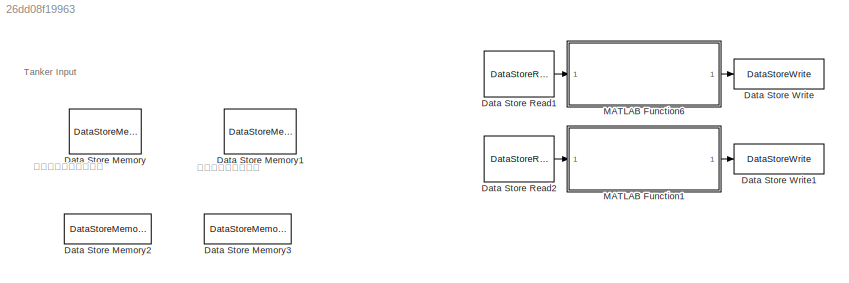
MODEL slx_26dd08f19963
KIND model
CONFIG AbsTol = auto
CONFIG EnableMultiTasking = off
CONFIG FixedStep = auto
CONFIG MaxStep = auto
CONFIG MinStep = auto
CONFIG RelTol = 1e-3
CONFIG SampleTimeConstraint = Unconstrained
CONFIG SolverName = VariableStepAuto
CONFIG StartTime = 0.0
CONFIG StopTime = 10.0
BLOCK [DataStoreMemory] Data Store Memory
  DataStoreName = TdrogueXYZ
  InitialValue = TdrogueXYZ0
  ShowAdditionalParam = off
  WriteAfterWriteMsg = warning
BLOCK [DataStoreMemory] Data Store Memory1
  DataStoreName = PodXYZ
  InitialValue = PodXYZ
  ShowAdditionalParam = off
  WriteAfterWriteMsg = warning
BLOCK [DataStoreMemory] Data Store Memory2
  DataStoreName = TdrogueVelocity
  InitialValue = [0,0,0]
  ShowAdditionalParam = off
  WriteAfterWriteMsg = warning
BLOCK [DataStoreMemory] Data Store Memory3
  DataStoreName = TdrogueDensity
  ShowAdditionalParam = off
  WriteAfterWriteMsg = warning
BLOCK [DataStoreRead] Data Store Read1
  DataStoreName = TdrogueXYZ
  IndexOptions = Index vector (dialog)
  Indices = 1
  OutputSizes = 1
BLOCK [DataStoreRead] Data Store Read2
  DataStoreName = TdrogueXYZ
  IndexOptions = Index vector (dialog)
  Indices = 1
  OutputSizes = 1
BLOCK [DataStoreWrite] Data Store Write
  DataStoreName = TdrogueVelocity
  IndexOptions = Index vector (dialog)
  Indices = 1
  OutputSizes = 1
BLOCK [DataStoreWrite] Data Store Write1
  DataStoreName = TdrogueDensity
  IndexOptions = Index vector (dialog)
  Indices = 1
  OutputSizes = 1
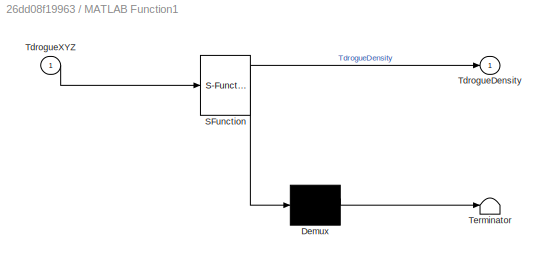
BLOCK [SubSystem] MATLAB Function1
  ErrorFcn = Stateflow.Translate.translate
  PermitHierarchicalResolution = ExplicitOnly
  SFBlockType = MATLAB Function
  TreatAsAtomicUnit = on
BLOCK [Demux] MATLAB Function1/ Demux 
  Outputs = 1
BLOCK [S-Function] MATLAB Function1/ SFunction 
  EnableBusSupport = on
  FunctionName = sf_sfun
  PortCounts = [1 2]
  SFcnIsStateOwnerBlock = off
  SFunctionDeploymentMode = off
  Tag = Stateflow S-Function 1
BLOCK [Terminator] MATLAB Function1/ Terminator 
BLOCK [Outport] MATLAB Function1/TdrogueDensity
BLOCK [Inport] MATLAB Function1/TdrogueXYZ
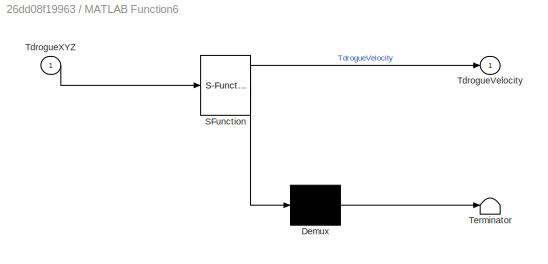
BLOCK [SubSystem] MATLAB Function6
  ErrorFcn = Stateflow.Translate.translate
  PermitHierarchicalResolution = ExplicitOnly
  SFBlockType = MATLAB Function
  TreatAsAtomicUnit = on
BLOCK [Demux] MATLAB Function6/ Demux 
  Outputs = 1
BLOCK [S-Function] MATLAB Function6/ SFunction 
  EnableBusSupport = on
  FunctionName = sf_sfun
  PortCounts = [1 2]
  SFcnIsStateOwnerBlock = off
  SFunctionDeploymentMode = off
  Tag = Stateflow S-Function 7
BLOCK [Terminator] MATLAB Function6/ Terminator 
BLOCK [Outport] MATLAB Function6/TdrogueVelocity
BLOCK [Inport] MATLAB Function6/TdrogueXYZ
ANNOTATION (root): 加油机加油吊舱坐标
ANNOTATION (root): 加油机流场下锥套坐标
ANNOTATION (root): Tanker Input
LINE Data Store Read1:1 -> MATLAB Function6:1
LINE Data Store Read2:1 -> MATLAB Function1:1
LINE MATLAB Function1:1 -> Data Store Write1:1
LINE MATLAB Function6:1 -> Data Store Write:1
CHART MATLAB Function6 states=1 transitions=1
  STATE_LABEL 'eML_blk_kernel()'
  STATE_LABEL 'SCRIPT:\nfunction TdrogueVelocity = GetVelocity(TdrogueXYZ)\ncoder.extrinsic("py.pyvista")\ncoder.extrinsic("py.numpy")\ncoder.extrinsic("py.ReadData.py")\ncoder.extrinsic("py.ReadData.get_velocity")\nTdrogueVelocity = [0.0,0.0,0.0];\nTdrogueVelocity = double(py.ReadData.get_velocity(TdrogueXYZ(1),TdrogueXYZ(2),TdrogueXYZ(3)));\n\n\n\n\n\n\n\n'
CHART MATLAB Function1 states=1 transitions=1
  STATE_LABEL 'eML_blk_kernel()'
  STATE_LABEL 'SCRIPT:\nfunction TdrogueDensity = GetDensity(TdrogueXYZ)\ncoder.extrinsic("py.pyvista")\ncoder.extrinsic("py.numpy")\ncoder.extrinsic("py.ReadData.py")\ncoder.extrinsic("py.ReadData.get_density")\nTdrogueDensity = 0.0;\nTdrogueDensity = double(py.ReadData.get_density(TdrogueXYZ(1),TdrogueXYZ(2),TdrogueXYZ(3)));\n\n\n\n\n\n\n\n'
CHART  states=0 transitions=0
CHART  states=0 transitions=0
